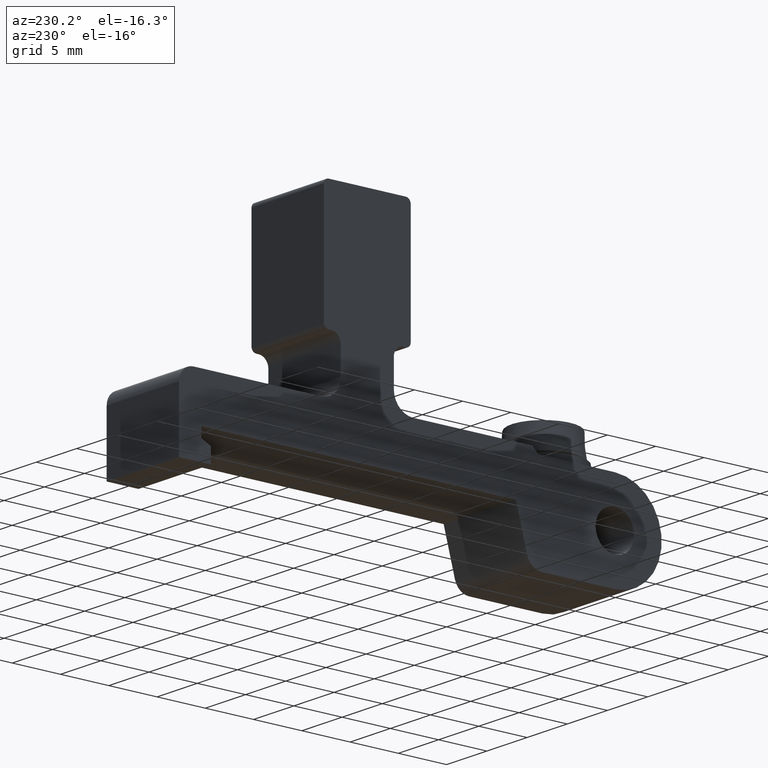
[diagram: clean part render]
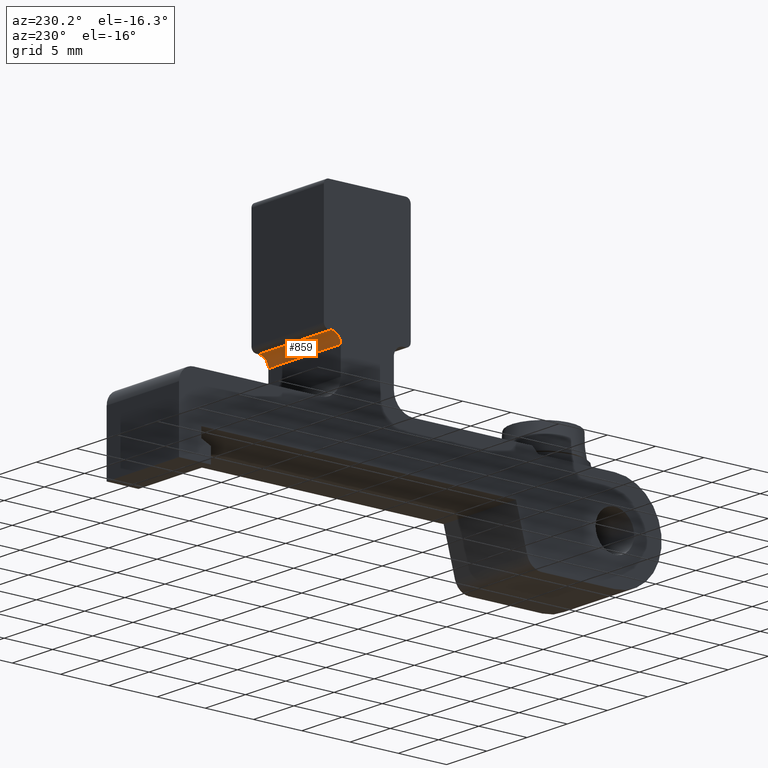
[diagram: same view with one face highlighted and labeled with its STEP entity id]
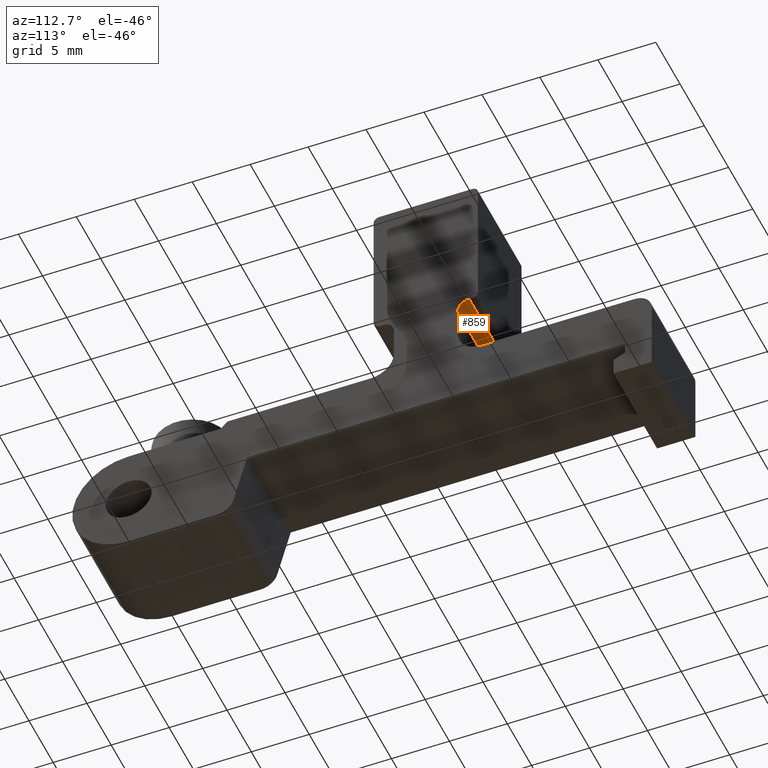
[diagram: same view with one face highlighted and labeled with its STEP entity id]
A machine part, auxiliary view. The second image highlights one B-rep face of the part: STEP entity #859.
A second angle (auxiliary view) of the same face is appended — the face is thin or edge-on in the first view.
In plain terms, the highlighted cylindrical surface (edge-blend (fillet) strip) has radius 1 mm, axis along (1, 0, 0).
Its self-contained STEP definition (entity closure, byte-faithful):
#124=FACE_OUTER_BOUND('',#171,.T.);
#171=EDGE_LOOP('',(#735,#736,#737,#738));
#244=LINE('',#1424,#322);
#245=LINE('',#1428,#323);
#322=VECTOR('',#1174,10.);
#323=VECTOR('',#1179,10.);
#343=CIRCLE('',#897,1.00000000000001);
#374=CIRCLE('',#961,1.00000000000001);
#384=VERTEX_POINT('',#1244);
#385=VERTEX_POINT('',#1246);
#446=VERTEX_POINT('',#1422);
#447=VERTEX_POINT('',#1426);
#465=EDGE_CURVE('',#384,#385,#343,.T.);
#553=EDGE_CURVE('',#384,#446,#244,.T.);
#554=EDGE_CURVE('',#447,#446,#374,.T.);
#555=EDGE_CURVE('',#385,#447,#245,.T.);
#735=ORIENTED_EDGE('',*,*,#553,.T.);
#736=ORIENTED_EDGE('',*,*,#554,.F.);
#737=ORIENTED_EDGE('',*,*,#555,.F.);
#738=ORIENTED_EDGE('',*,*,#465,.F.);
#824=CYLINDRICAL_SURFACE('',#960,1.00000000000001);
#859=ADVANCED_FACE('',(#124),#824,.F.);
#897=AXIS2_PLACEMENT_3D('',#1247,#995,#996);
#960=AXIS2_PLACEMENT_3D('',#1425,#1175,#1176);
#961=AXIS2_PLACEMENT_3D('',#1427,#1177,#1178);
#995=DIRECTION('center_axis',(1.,0.,0.));
#996=DIRECTION('ref_axis',(0.,0.,-1.));
#1174=DIRECTION('',(1.,0.,0.));
#1175=DIRECTION('center_axis',(1.,0.,0.));
#1176=DIRECTION('ref_axis',(0.,0.,-1.));
#1177=DIRECTION('center_axis',(-1.,0.,0.));
#1178=DIRECTION('ref_axis',(0.,0.,-1.));
#1179=DIRECTION('',(1.,0.,0.));
#1244=CARTESIAN_POINT('',(-4.5,4.05,11.15));
#1246=CARTESIAN_POINT('',(-4.5,3.05,10.15));
#1247=CARTESIAN_POINT('Origin',(-4.5,4.05,10.15));
#1422=CARTESIAN_POINT('',(4.5,4.05,11.15));
#1424=CARTESIAN_POINT('',(0.,4.05,11.15));
#1425=CARTESIAN_POINT('Origin',(0.,4.05,10.15));
#1426=CARTESIAN_POINT('',(4.5,3.05,10.15));
#1427=CARTESIAN_POINT('Origin',(4.5,4.05,10.15));
#1428=CARTESIAN_POINT('',(0.,3.05,10.15));